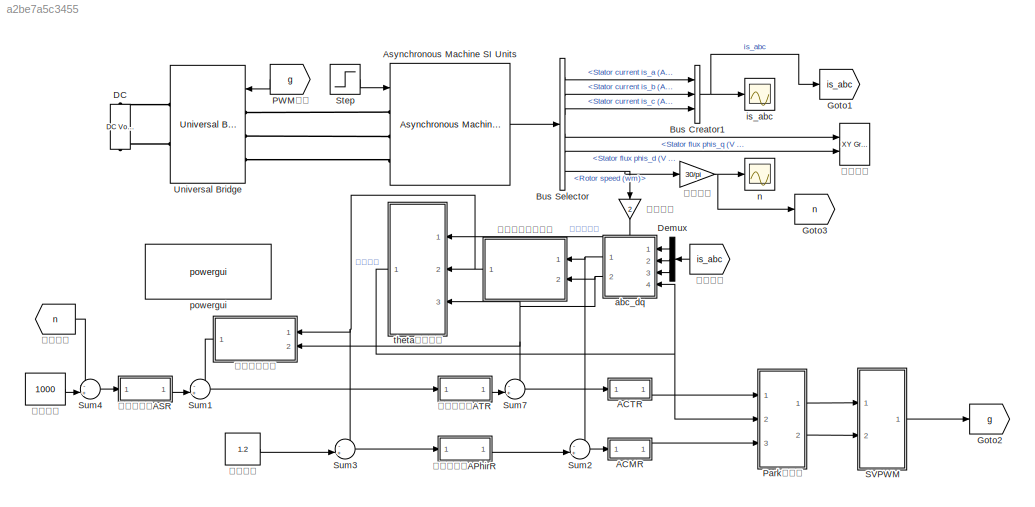
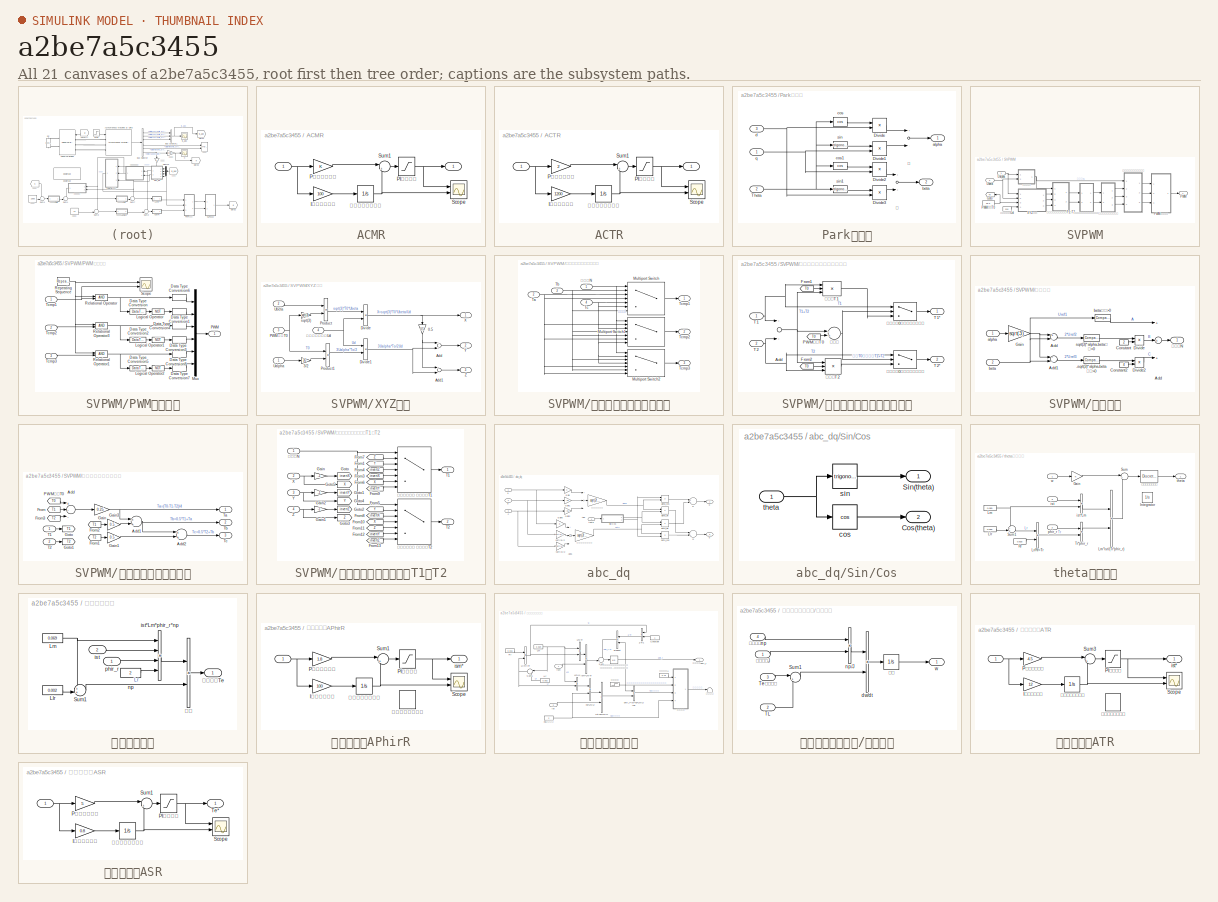
[diagram: thumbnail index - all 21 canvases of the model, root first then tree order]
MODEL slx_a2be7a5c3455
KIND model
CONFIG AbsTol = auto
CONFIG EnableMultiTasking = off
CONFIG FixedStep = auto
CONFIG MaxStep = 1e-4
CONFIG MinStep = auto
CONFIG RelTol = 1e-3
CONFIG SampleTimeConstraint = Unconstrained
CONFIG Solver = ode23tb
CONFIG SolverName = ode23tb
CONFIG StartTime = 0.0
CONFIG StopTime = 3
BLOCK [SubSystem] ACMR
  Ports = [1, 1]
  RequestExecContextInheritance = off
  Variant = off
BLOCK [Outport] ACMR/ 
  IconDisplay = Port number
BLOCK [Inport] ACMR/  
  IconDisplay = Port number
BLOCK [Gain] ACMR/I积分放大倍数
  Gain = 100
  OutDataTypeStr = Inherit: Inherit via internal rule
  ParamDataTypeStr = Inherit: Inherit via internal rule
  SaturateOnIntegerOverflow = off
BLOCK [Saturate] ACMR/PI输出限幅
  InputPortMap = u0
  LowerLimit = -75
  Ports = [1, 1]
  UpperLimit = 75
BLOCK [Gain] ACMR/P比例放大倍数
  OutDataTypeStr = Inherit: Inherit via internal rule
  ParamDataTypeStr = Inherit: Inherit via internal rule
  SaturateOnIntegerOverflow = off
BLOCK [Scope] ACMR/Scope
  NumInputPorts = 2
  Ports = [2]
  ScopeSpecificationString = Simulink.scopes.TimeScopeBlockCfg('CurrentConfiguration', extmgr.ConfigurationSet(extmgr.Configuration('Core','General UI',true),extmgr.Configuration('Core','Source UI',true),extmgr.Configuration('Sources','WiredSimulink',true,'DataLoggingVariableName','ScopeData1'),extmgr.Configuration('Visuals','Time Domain',true,'SerializedDisplays',{struct('MinYLimReal','-85.66897','MaxYLimReal','21.02076','YL...<+1411ch>
BLOCK [Sum] ACMR/Sum1
  IconShape = round
  InputSameDT = off
  Inputs = |++
  OutDataTypeStr = Inherit: Inherit via internal rule
  Ports = [2, 1]
  SaturateOnIntegerOverflow = off
BLOCK [Integrator] ACMR/带限幅的连续积分
  LimitOutput = on
  LowerSaturationLimit = -390
  Ports = [1, 1]
  UpperSaturationLimit = 390
BLOCK [SubSystem] ACTR
  Ports = [1, 1]
  RequestExecContextInheritance = off
  Variant = off
BLOCK [Outport] ACTR/ 
  IconDisplay = Port number
BLOCK [Inport] ACTR/  
  IconDisplay = Port number
BLOCK [Gain] ACTR/I积分放大倍数
  Gain = 1200
  OutDataTypeStr = Inherit: Inherit via internal rule
  ParamDataTypeStr = Inherit: Inherit via internal rule
  SaturateOnIntegerOverflow = off
BLOCK [Saturate] ACTR/PI输出限幅
  InputPortMap = u0
  LowerLimit = -380
  Ports = [1, 1]
  UpperLimit = 380
BLOCK [Gain] ACTR/P比例放大倍数
  Gain = 2
  OutDataTypeStr = Inherit: Inherit via internal rule
  ParamDataTypeStr = Inherit: Inherit via internal rule
  SaturateOnIntegerOverflow = off
BLOCK [Scope] ACTR/Scope
  NumInputPorts = 2
  Ports = [2]
  ScopeSpecificationString = Simulink.scopes.TimeScopeBlockCfg('CurrentConfiguration', extmgr.ConfigurationSet(extmgr.Configuration('Core','General UI',true),extmgr.Configuration('Core','Source UI',true),extmgr.Configuration('Sources','WiredSimulink',true,'DataLoggingVariableName','ScopeData1'),extmgr.Configuration('Visuals','Time Domain',true,'SerializedDisplays',{struct('MinYLimReal','-39.15296','MaxYLimReal','352.37665','Y...<+1458ch>
BLOCK [Sum] ACTR/Sum1
  IconShape = round
  InputSameDT = off
  Inputs = |++
  OutDataTypeStr = Inherit: Inherit via internal rule
  Ports = [2, 1]
  SaturateOnIntegerOverflow = off
BLOCK [Integrator] ACTR/带限幅的连续积分
  LimitOutput = on
  LowerSaturationLimit = -400
  Ports = [1, 1]
  UpperSaturationLimit = 400
BLOCK [Reference] Asynchronous Machine SI Units  REF=powerlib/Machines/Asynchronous Machine
SI Units
  Ports = [1, 1, 0, 0, 0, 3]
  SourceBlock = powerlib/Machines/Asynchronous Machine\nSI Units
  SourceProductBaseCode = PS
  SourceProductName = Simscape Power Systems
  SourceType = Asynchronous Machine
BLOCK [BusCreator] Bus Creator1
  DisplayOption = bar
  InheritFromInputs = on
  Inputs = 3
  Ports = [3, 1]
BLOCK [BusSelector] Bus Selector
  OutputAsBus = off
  OutputSignals = Stator measurements.Stator current is_a (A),Stator measurements.Stator current is_b (A),Stator measurements.Stator current is_c (A),Stator measurements.Stator flux phis_q (V s),Stator measurements.Stator flux phis_d (V s),Mechanical.Rotor speed (wm)
  Ports = [1, 6]
BLOCK [Reference] DC  REF=powerlib/Electrical
Sources/DC Voltage Source
  Ports = [0, 0, 0, 0, 0, 1, 1]
  SourceBlock = powerlib/Electrical\nSources/DC Voltage Source
  SourceProductBaseCode = PS
  SourceProductName = Simscape Power Systems
  SourceType = DC Voltage Source
BLOCK [Demux] Demux
  DisplayOption = bar
  Outputs = 3
  Ports = [1, 3]
BLOCK [Goto] Goto1
  GotoTag = is_abc
BLOCK [Goto] Goto2
  GotoTag = g
BLOCK [Goto] Goto3
  GotoTag = n
BLOCK [From] PWM信号
  GotoTag = g
BLOCK [SubSystem] Park逆变换
  Ports = [3, 2]
  RequestExecContextInheritance = off
  Variant = off
BLOCK [Product] Park逆变换/Divide
  InputSameDT = off
  Inputs = **
  OutDataTypeStr = Inherit: Inherit via internal rule
  Ports = [2, 1]
  RndMeth = Floor
  SaturateOnIntegerOverflow = off
BLOCK [Product] Park逆变换/Divide1
  InputSameDT = off
  Inputs = **
  OutDataTypeStr = Inherit: Inherit via internal rule
  Ports = [2, 1]
  RndMeth = Floor
  SaturateOnIntegerOverflow = off
BLOCK [Product] Park逆变换/Divide2
  InputSameDT = off
  Inputs = **
  OutDataTypeStr = Inherit: Inherit via internal rule
  Ports = [2, 1]
  RndMeth = Floor
  SaturateOnIntegerOverflow = off
BLOCK [Product] Park逆变换/Divide3
  InputSameDT = off
  Inputs = **
  OutDataTypeStr = Inherit: Inherit via internal rule
  Ports = [2, 1]
  RndMeth = Floor
  SaturateOnIntegerOverflow = off
BLOCK [Inport] Park逆变换/Theta
  IconDisplay = Port number
  Port = 2
BLOCK [Outport] Park逆变换/alpha
  IconDisplay = Port number
BLOCK [Outport] Park逆变换/beta
  IconDisplay = Port number
  Port = 2
BLOCK [Trigonometry] Park逆变换/cos
  Operator = cos
  Ports = [1, 1]
BLOCK [Trigonometry] Park逆变换/cos1
  Operator = cos
  Ports = [1, 1]
BLOCK [Inport] Park逆变换/d
  IconDisplay = Port number
  Port = 3
BLOCK [Inport] Park逆变换/q
  IconDisplay = Port number
BLOCK [Trigonometry] Park逆变换/sin
  Ports = [1, 1]
BLOCK [Trigonometry] Park逆变换/sin1
  Ports = [1, 1]
BLOCK [Sum] Park逆变换/减
  InputSameDT = off
  Inputs = +-
  OutDataTypeStr = Inherit: Inherit via internal rule
  Ports = [2, 1]
  SaturateOnIntegerOverflow = off
BLOCK [Sum] Park逆变换/加
  InputSameDT = off
  OutDataTypeStr = Inherit: Inherit via internal rule
  Ports = [2, 1]
  SaturateOnIntegerOverflow = off
BLOCK [SubSystem] SVPWM
  Ports = [2, 1]
  RequestExecContextInheritance = off
  Variant = off
BLOCK [Goto] SVPWM/Goto
  GotoTag = T0
  TagVisibility = global
BLOCK [Outport] SVPWM/PWM
  IconDisplay = Port number
BLOCK [SubSystem] SVPWM/PWM信号产生
  Ports = [3, 1]
  RequestExecContextInheritance = off
  Variant = off
BLOCK [DataTypeConversion] SVPWM/PWM信号产生/Data Type Conversion
  OutDataTypeStr = boolean
  RndMeth = Floor
  SaturateOnIntegerOverflow = off
BLOCK [DataTypeConversion] SVPWM/PWM信号产生/Data Type Conversion1
  OutDataTypeStr = double
  RndMeth = Floor
  SaturateOnIntegerOverflow = off
BLOCK [DataTypeConversion] SVPWM/PWM信号产生/Data Type Conversion2
  OutDataTypeStr = boolean
  RndMeth = Floor
  SaturateOnIntegerOverflow = off
BLOCK [DataTypeConversion] SVPWM/PWM信号产生/Data Type Conversion3
  OutDataTypeStr = double
  RndMeth = Floor
  SaturateOnIntegerOverflow = off
BLOCK [DataTypeConversion] SVPWM/PWM信号产生/Data Type Conversion4
  OutDataTypeStr = double
  RndMeth = Floor
  SaturateOnIntegerOverflow = off
BLOCK [DataTypeConversion] SVPWM/PWM信号产生/Data Type Conversion5
  OutDataTypeStr = boolean
  RndMeth = Floor
  SaturateOnIntegerOverflow = off
BLOCK [DataTypeConversion] SVPWM/PWM信号产生/Data Type Conversion6
  OutDataTypeStr = double
  RndMeth = Floor
  SaturateOnIntegerOverflow = off
BLOCK [DataTypeConversion] SVPWM/PWM信号产生/Data Type Conversion7
  OutDataTypeStr = double
  RndMeth = Floor
  SaturateOnIntegerOverflow = off
BLOCK [DataTypeConversion] SVPWM/PWM信号产生/Data Type Conversion8
  OutDataTypeStr = double
  RndMeth = Floor
  SaturateOnIntegerOverflow = off
BLOCK [Logic] SVPWM/PWM信号产生/Logical Operator
  AllPortsSameDT = off
  Operator = NOT
  OutDataTypeStr = boolean
  Ports = [1, 1]
BLOCK [Logic] SVPWM/PWM信号产生/Logical Operator1
  AllPortsSameDT = off
  Operator = NOT
  OutDataTypeStr = boolean
  Ports = [1, 1]
BLOCK [Logic] SVPWM/PWM信号产生/Logical Operator2
  AllPortsSameDT = off
  Operator = NOT
  OutDataTypeStr = boolean
  Ports = [1, 1]
BLOCK [Mux] SVPWM/PWM信号产生/Mux
  DisplayOption = bar
  Inputs = 6
  Ports = [6, 1]
BLOCK [Outport] SVPWM/PWM信号产生/PWM
  IconDisplay = Port number
BLOCK [RelationalOperator] SVPWM/PWM信号产生/Relational Operator
  InputSameDT = off
  OutDataTypeStr = boolean
  Ports = [2, 1]
BLOCK [RelationalOperator] SVPWM/PWM信号产生/Relational Operator1
  InputSameDT = off
  OutDataTypeStr = boolean
  Ports = [2, 1]
BLOCK [RelationalOperator] SVPWM/PWM信号产生/Relational Operator3
  InputSameDT = off
  OutDataTypeStr = boolean
  Ports = [2, 1]
BLOCK [Reference] SVPWM/PWM信号产生/Repeating Sequence  REF=simulink/Sources/Repeating
Sequence
  Ports = [0, 1]
  SourceBlock = simulink/Sources/Repeating\nSequence
  SourceProductBaseCode = SL
  SourceProductName = Simulink
  SourceType = Repeating table
BLOCK [Scope] SVPWM/PWM信号产生/Scope
  NumInputPorts = 2
  Ports = [2]
  ScopeSpecificationString = Simulink.scopes.TimeScopeBlockCfg('CurrentConfiguration', extmgr.ConfigurationSet(extmgr.Configuration('Core','General UI',true),extmgr.Configuration('Core','Source UI',true),extmgr.Configuration('Sources','WiredSimulink',true,'DataLoggingVariableName','ScopeData1'),extmgr.Configuration('Visuals','Time Domain',true,'SerializedDisplays',{struct('MinYLimReal','-10','MaxYLimReal','10','YLabelReal',''...<+1317ch>
BLOCK [Inport] SVPWM/PWM信号产生/Tcmp1
  IconDisplay = Port number
BLOCK [Inport] SVPWM/PWM信号产生/Tcmp2
  IconDisplay = Port number
  Port = 2
BLOCK [Inport] SVPWM/PWM信号产生/Tcmp3
  IconDisplay = Port number
  Port = 3
BLOCK [Constant] SVPWM/PWM周期T0
  Value = 2e-6
BLOCK [Inport] SVPWM/Ualpha
  IconDisplay = Port number
BLOCK [Inport] SVPWM/Ubeta
  IconDisplay = Port number
  Port = 2
BLOCK [SubSystem] SVPWM/XYZ计算
  Ports = [4, 3]
  RequestExecContextInheritance = off
  Variant = off
BLOCK [Gain] SVPWM/XYZ计算/0.5
  Gain = 0.5
  OutDataTypeStr = Inherit: Inherit via internal rule
  ParamDataTypeStr = Inherit: Inherit via internal rule
  SaturateOnIntegerOverflow = off
BLOCK [Gain] SVPWM/XYZ计算/3//2
  Gain = 3/2
  OutDataTypeStr = Inherit: Inherit via internal rule
  ParamDataTypeStr = Inherit: Inherit via internal rule
  SaturateOnIntegerOverflow = off
BLOCK [Sum] SVPWM/XYZ计算/Add
  InputSameDT = off
  OutDataTypeStr = Inherit: Inherit via internal rule
  Ports = [2, 1]
  SaturateOnIntegerOverflow = off
BLOCK [Sum] SVPWM/XYZ计算/Add1
  InputSameDT = off
  Inputs = +-
  OutDataTypeStr = Inherit: Inherit via internal rule
  Ports = [2, 1]
  SaturateOnIntegerOverflow = off
BLOCK [Product] SVPWM/XYZ计算/Divide
  InputSameDT = off
  Inputs = */
  OutDataTypeStr = Inherit: Inherit via internal rule
  Ports = [2, 1]
  RndMeth = Floor
  SaturateOnIntegerOverflow = off
BLOCK [Product] SVPWM/XYZ计算/Divide1
  InputSameDT = off
  Inputs = /*
  OutDataTypeStr = Inherit: Inherit via internal rule
  Ports = [2, 1]
  RndMeth = Floor
  SaturateOnIntegerOverflow = off
BLOCK [Inport] SVPWM/XYZ计算/PWM周期T0
  IconDisplay = Port number
  Port = 3
BLOCK [Product] SVPWM/XYZ计算/Product
  InputSameDT = off
  OutDataTypeStr = Inherit: Inherit via internal rule
  Ports = [2, 1]
  RndMeth = Floor
  SaturateOnIntegerOverflow = off
BLOCK [Product] SVPWM/XYZ计算/Product1
  InputSameDT = off
  OutDataTypeStr = Inherit: Inherit via internal rule
  Ports = [2, 1]
  RndMeth = Floor
  SaturateOnIntegerOverflow = off
BLOCK [Inport] SVPWM/XYZ计算/Ualpha
  IconDisplay = Port number
BLOCK [Inport] SVPWM/XYZ计算/Ubeta
  IconDisplay = Port number
  Port = 2
BLOCK [Outport] SVPWM/XYZ计算/X
  IconDisplay = Port number
BLOCK [Outport] SVPWM/XYZ计算/Y
  IconDisplay = Port number
  Port = 2
BLOCK [Outport] SVPWM/XYZ计算/Z
  IconDisplay = Port number
  Port = 3
BLOCK [Gain] SVPWM/XYZ计算/sqrt(3) 
  Gain = sqrt(3)
  OutDataTypeStr = Inherit: Inherit via internal rule
  ParamDataTypeStr = Inherit: Inherit via internal rule
  SaturateOnIntegerOverflow = off
BLOCK [Inport] SVPWM/XYZ计算/逆变直流侧电压Ud
  IconDisplay = Port number
  Port = 4
BLOCK [SubSystem] SVPWM/三相电压开关时间切换点
  Ports = [4, 3]
  RequestExecContextInheritance = off
  Variant = off
BLOCK [MultiPortSwitch] SVPWM/三相电压开关时间切换点/Multiport Switch
  InputSameDT = off
  Inputs = 6
  OutDataTypeStr = double
  Ports = [7, 1]
  SaturateOnIntegerOverflow = off
BLOCK [MultiPortSwitch] SVPWM/三相电压开关时间切换点/Multiport Switch1
  InputSameDT = off
  Inputs = 6
  OutDataTypeStr = double
  Ports = [7, 1]
  SaturateOnIntegerOverflow = off
BLOCK [MultiPortSwitch] SVPWM/三相电压开关时间切换点/Multiport Switch2
  InputSameDT = off
  Inputs = 6
  OutDataTypeStr = double
  Ports = [7, 1]
  SaturateOnIntegerOverflow = off
BLOCK [Inport] SVPWM/三相电压开关时间切换点/Ta
  IconDisplay = Port number
  Port = 2
BLOCK [Inport] SVPWM/三相电压开关时间切换点/Tb
  IconDisplay = Port number
  Port = 3
BLOCK [Inport] SVPWM/三相电压开关时间切换点/Tc
  IconDisplay = Port number
  Port = 4
BLOCK [Outport] SVPWM/三相电压开关时间切换点/Tcmp1
  IconDisplay = Port number
BLOCK [Outport] SVPWM/三相电压开关时间切换点/Tcmp2
  IconDisplay = Port number
  Port = 2
BLOCK [Outport] SVPWM/三相电压开关时间切换点/Tcmp3
  IconDisplay = Port number
  Port = 3
BLOCK [Inport] SVPWM/三相电压开关时间切换点/扇区值N
  IconDisplay = Port number
BLOCK [SubSystem] SVPWM/判定是否需要调制处理模块
  Ports = [2, 2]
  RequestExecContextInheritance = off
  Variant = off
BLOCK [Sum] SVPWM/判定是否需要调制处理模块/Add
  InputSameDT = off
  OutDataTypeStr = Inherit: Inherit via internal rule
  Ports = [2, 1]
  SaturateOnIntegerOverflow = off
BLOCK [From] SVPWM/判定是否需要调制处理模块/From1
  GotoTag = T0
  TagVisibility = global
BLOCK [From] SVPWM/判定是否需要调制处理模块/From2
  GotoTag = T0
  TagVisibility = global
BLOCK [From] SVPWM/判定是否需要调制处理模块/PWM周期T0
  GotoTag = T0
  TagVisibility = global
BLOCK [Inport] SVPWM/判定是否需要调制处理模块/T1
  IconDisplay = Port number
BLOCK [Outport] SVPWM/判定是否需要调制处理模块/T1*
  IconDisplay = Port number
BLOCK [Inport] SVPWM/判定是否需要调制处理模块/T2
  IconDisplay = Port number
  Port = 2
BLOCK [Outport] SVPWM/判定是否需要调制处理模块/T2*
  IconDisplay = Port number
  Port = 2
BLOCK [Switch] SVPWM/判定是否需要调制处理模块/如果大于0则切换开关到上方
  Criteria = u2 > Threshold
  InputSameDT = off
  SaturateOnIntegerOverflow = off
BLOCK [Switch] SVPWM/判定是否需要调制处理模块/如果大于0则切换开关到上方 
  Criteria = u2 > Threshold
  InputSameDT = off
  SaturateOnIntegerOverflow = off
BLOCK [Sum] SVPWM/判定是否需要调制处理模块/比较器
  InputSameDT = off
  Inputs = -+
  OutDataTypeStr = Inherit: Inherit via internal rule
  Ports = [2, 1]
  SaturateOnIntegerOverflow = off
BLOCK [Product] SVPWM/判定是否需要调制处理模块/调制后T1
  InputSameDT = off
  Inputs = **/
  OutDataTypeStr = Inherit: Inherit via internal rule
  Ports = [3, 1]
  RndMeth = Floor
  SaturateOnIntegerOverflow = off
BLOCK [Product] SVPWM/判定是否需要调制处理模块/调制后T2
  InputSameDT = off
  Inputs = /**
  OutDataTypeStr = Inherit: Inherit via internal rule
  Ports = [3, 1]
  RndMeth = Floor
  SaturateOnIntegerOverflow = off
BLOCK [SubSystem] SVPWM/扇区判断
  Ports = [2, 1]
  RequestExecContextInheritance = off
  Variant = off
BLOCK [Reference] SVPWM/扇区判断/-sqrt(3)*alpha-beta是否>0  REF=simulink/Logic and Bit
Operations/Compare
To Zero
  Ports = [1, 1]
  SourceBlock = simulink/Logic and Bit\nOperations/Compare\nTo Zero
  SourceProductBaseCode = SL
  SourceProductName = Simulink
  SourceType = Compare To Zero
BLOCK [Sum] SVPWM/扇区判断/Add
  InputSameDT = off
  Inputs = +-
  OutDataTypeStr = Inherit: Inherit via internal rule
  Ports = [2, 1]
  SaturateOnIntegerOverflow = off
BLOCK [Sum] SVPWM/扇区判断/Add 
  InputSameDT = off
  Inputs = +++
  OutDataTypeStr = Inherit: Inherit via internal rule
  Ports = [3, 1]
  SaturateOnIntegerOverflow = off
BLOCK [Sum] SVPWM/扇区判断/Add1
  InputSameDT = off
  Inputs = --
  OutDataTypeStr = Inherit: Inherit via internal rule
  Ports = [2, 1]
  SaturateOnIntegerOverflow = off
BLOCK [Constant] SVPWM/扇区判断/Constant
  Value = 2
BLOCK [Constant] SVPWM/扇区判断/Constant2
  Value = 4
BLOCK [Product] SVPWM/扇区判断/Divide
  InputSameDT = off
  Inputs = **
  OutDataTypeStr = Inherit: Inherit via internal rule
  Ports = [2, 1]
  RndMeth = Floor
  SaturateOnIntegerOverflow = off
BLOCK [Product] SVPWM/扇区判断/Divide2
  InputSameDT = off
  Inputs = **
  OutDataTypeStr = Inherit: Inherit via internal rule
  Ports = [2, 1]
  RndMeth = Floor
  SaturateOnIntegerOverflow = off
BLOCK [Gain] SVPWM/扇区判断/Gain
  Gain = sqrt(3)
  OutDataTypeStr = Inherit: Inherit via internal rule
  ParamDataTypeStr = Inherit: Inherit via internal rule
  SaturateOnIntegerOverflow = off
BLOCK [Inport] SVPWM/扇区判断/alpha
  IconDisplay = Port number
BLOCK [Inport] SVPWM/扇区判断/beta
  IconDisplay = Port number
  Port = 2
BLOCK [Reference] SVPWM/扇区判断/beta是否>0  REF=simulink/Logic and Bit
Operations/Compare
To Zero
  Ports = [1, 1]
  SourceBlock = simulink/Logic and Bit\nOperations/Compare\nTo Zero
  SourceProductBaseCode = SL
  SourceProductName = Simulink
  SourceType = Compare To Zero
BLOCK [Reference] SVPWM/扇区判断/sqrt(3)*alpha-beta是否>0  REF=simulink/Logic and Bit
Operations/Compare
To Zero
  Ports = [1, 1]
  SourceBlock = simulink/Logic and Bit\nOperations/Compare\nTo Zero
  SourceProductBaseCode = SL
  SourceProductName = Simulink
  SourceType = Compare To Zero
BLOCK [Outport] SVPWM/扇区判断/扇区值N
  IconDisplay = Port number
BLOCK [Constant] SVPWM/直流侧电压Ud
  Value = 510
BLOCK [SubSystem] SVPWM/确定各扇区矢量切换点
  Ports = [2, 3]
  RequestExecContextInheritance = off
  Variant = off
BLOCK [Sum] SVPWM/确定各扇区矢量切换点/Add
  InputSameDT = off
  Inputs = +--
  OutDataTypeStr = Inherit: Inherit via internal rule
  Ports = [3, 1]
  SaturateOnIntegerOverflow = off
BLOCK [Sum] SVPWM/确定各扇区矢量切换点/Add1
  InputSameDT = off
  OutDataTypeStr = Inherit: Inherit via internal rule
  Ports = [2, 1]
  SaturateOnIntegerOverflow = off
BLOCK [Sum] SVPWM/确定各扇区矢量切换点/Add2
  InputSameDT = off
  OutDataTypeStr = Inherit: Inherit via internal rule
  Ports = [2, 1]
  SaturateOnIntegerOverflow = off
BLOCK [From] SVPWM/确定各扇区矢量切换点/From
  GotoTag = T1
BLOCK [From] SVPWM/确定各扇区矢量切换点/From1
  GotoTag = T2
BLOCK [From] SVPWM/确定各扇区矢量切换点/From2
  GotoTag = T1
BLOCK [From] SVPWM/确定各扇区矢量切换点/From3
  GotoTag = T2
BLOCK [Gain] SVPWM/确定各扇区矢量切换点/Gain
  Gain = 0.25
  OutDataTypeStr = Inherit: Inherit via internal rule
  ParamDataTypeStr = Inherit: Inherit via internal rule
  SaturateOnIntegerOverflow = off
BLOCK [Gain] SVPWM/确定各扇区矢量切换点/Gain1
  Gain = 0.5
  OutDataTypeStr = Inherit: Inherit via internal rule
  ParamDataTypeStr = Inherit: Inherit via internal rule
  SaturateOnIntegerOverflow = off
BLOCK [Gain] SVPWM/确定各扇区矢量切换点/Gain3
  Gain = 0.5
  OutDataTypeStr = Inherit: Inherit via internal rule
  ParamDataTypeStr = Inherit: Inherit via internal rule
  SaturateOnIntegerOverflow = off
BLOCK [Goto] SVPWM/确定各扇区矢量切换点/Goto
  GotoTag = T1
BLOCK [Goto] SVPWM/确定各扇区矢量切换点/Goto1
  GotoTag = T2
BLOCK [From] SVPWM/确定各扇区矢量切换点/PWM周期T0
  GotoTag = T0
  TagVisibility = global
BLOCK [Inport] SVPWM/确定各扇区矢量切换点/T1
  IconDisplay = Port number
BLOCK [Inport] SVPWM/确定各扇区矢量切换点/T2
  IconDisplay = Port number
  Port = 2
BLOCK [Outport] SVPWM/确定各扇区矢量切换点/Ta
  IconDisplay = Port number
BLOCK [Outport] SVPWM/确定各扇区矢量切换点/Tb
  IconDisplay = Port number
  Port = 2
BLOCK [Outport] SVPWM/确定各扇区矢量切换点/Tc
  IconDisplay = Port number
  Port = 3
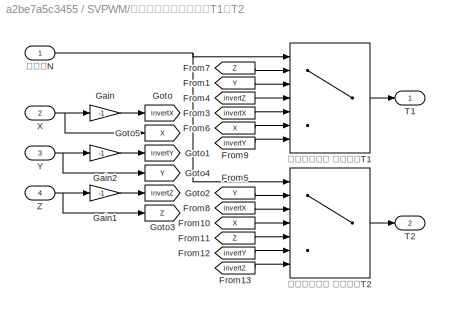
BLOCK [SubSystem] SVPWM/计算各个扇区作用时间T1、T2
  Ports = [4, 2]
  RequestExecContextInheritance = off
  Variant = off
BLOCK [From] SVPWM/计算各个扇区作用时间T1、T2/From1
  GotoTag = Y
  TagVisibility = global
BLOCK [From] SVPWM/计算各个扇区作用时间T1、T2/From10
  GotoTag = X
  TagVisibility = global
BLOCK [From] SVPWM/计算各个扇区作用时间T1、T2/From11
  GotoTag = Z
  TagVisibility = global
BLOCK [From] SVPWM/计算各个扇区作用时间T1、T2/From12
  GotoTag = invertY
  TagVisibility = global
BLOCK [From] SVPWM/计算各个扇区作用时间T1、T2/From13
  GotoTag = invertZ
  TagVisibility = global
BLOCK [From] SVPWM/计算各个扇区作用时间T1、T2/From3
  GotoTag = invertX
  TagVisibility = global
BLOCK [From] SVPWM/计算各个扇区作用时间T1、T2/From4
  GotoTag = invertZ
  TagVisibility = global
BLOCK [From] SVPWM/计算各个扇区作用时间T1、T2/From5
  GotoTag = Y
  TagVisibility = global
BLOCK [From] SVPWM/计算各个扇区作用时间T1、T2/From6
  GotoTag = X
  TagVisibility = global
BLOCK [From] SVPWM/计算各个扇区作用时间T1、T2/From7
  GotoTag = Z
  TagVisibility = global
BLOCK [From] SVPWM/计算各个扇区作用时间T1、T2/From8
  GotoTag = invertX
  TagVisibility = global
BLOCK [From] SVPWM/计算各个扇区作用时间T1、T2/From9
  GotoTag = invertY
  TagVisibility = global
BLOCK [Gain] SVPWM/计算各个扇区作用时间T1、T2/Gain
  Gain = -1
  OutDataTypeStr = Inherit: Inherit via internal rule
  ParamDataTypeStr = Inherit: Inherit via internal rule
  SaturateOnIntegerOverflow = off
BLOCK [Gain] SVPWM/计算各个扇区作用时间T1、T2/Gain1
  Gain = -1
  OutDataTypeStr = Inherit: Inherit via internal rule
  ParamDataTypeStr = Inherit: Inherit via internal rule
  SaturateOnIntegerOverflow = off
BLOCK [Gain] SVPWM/计算各个扇区作用时间T1、T2/Gain2
  Gain = -1
  OutDataTypeStr = Inherit: Inherit via internal rule
  ParamDataTypeStr = Inherit: Inherit via internal rule
  SaturateOnIntegerOverflow = off
BLOCK [Goto] SVPWM/计算各个扇区作用时间T1、T2/Goto
  GotoTag = invertX
  TagVisibility = global
BLOCK [Goto] SVPWM/计算各个扇区作用时间T1、T2/Goto1
  GotoTag = invertY
  TagVisibility = global
BLOCK [Goto] SVPWM/计算各个扇区作用时间T1、T2/Goto2
  GotoTag = invertZ
  TagVisibility = global
BLOCK [Goto] SVPWM/计算各个扇区作用时间T1、T2/Goto3
  GotoTag = Z
  TagVisibility = global
BLOCK [Goto] SVPWM/计算各个扇区作用时间T1、T2/Goto4
  GotoTag = Y
  TagVisibility = global
BLOCK [Goto] SVPWM/计算各个扇区作用时间T1、T2/Goto5
  GotoTag = X
  TagVisibility = global
BLOCK [Outport] SVPWM/计算各个扇区作用时间T1、T2/T1
  IconDisplay = Port number
BLOCK [Outport] SVPWM/计算各个扇区作用时间T1、T2/T2
  IconDisplay = Port number
  Port = 2
BLOCK [Inport] SVPWM/计算各个扇区作用时间T1、T2/X
  IconDisplay = Port number
  Port = 2
BLOCK [Inport] SVPWM/计算各个扇区作用时间T1、T2/Y
  IconDisplay = Port number
  Port = 3
BLOCK [Inport] SVPWM/计算各个扇区作用时间T1、T2/Z
  IconDisplay = Port number
  Port = 4
BLOCK [Inport] SVPWM/计算各个扇区作用时间T1、T2/扇区值N
  IconDisplay = Port number
BLOCK [MultiPortSwitch] SVPWM/计算各个扇区作用时间T1、T2/根据输入扇区 选择输出T1
  InputSameDT = off
  Inputs = 6
  Ports = [7, 1]
  SaturateOnIntegerOverflow = off
BLOCK [MultiPortSwitch] SVPWM/计算各个扇区作用时间T1、T2/根据输入扇区 选择输出T2
  InputSameDT = off
  Inputs = 6
  Ports = [7, 1]
  SaturateOnIntegerOverflow = off
BLOCK [Step] Step
  After = 55
  SampleTime = 0
  Time = 0.6
BLOCK [Sum] Sum1
  IconShape = round
  InputSameDT = off
  Inputs = -+|
  OutDataTypeStr = Inherit: Inherit via internal rule
  Ports = [2, 1]
  SaturateOnIntegerOverflow = off
BLOCK [Sum] Sum2
  IconShape = round
  InputSameDT = off
  Inputs = -+|
  OutDataTypeStr = Inherit: Inherit via internal rule
  Ports = [2, 1]
  SaturateOnIntegerOverflow = off
BLOCK [Sum] Sum3
  IconShape = round
  InputSameDT = off
  Inputs = -+|
  OutDataTypeStr = Inherit: Inherit via internal rule
  Ports = [2, 1]
  SaturateOnIntegerOverflow = off
BLOCK [Sum] Sum4
  IconShape = round
  InputSameDT = off
  Inputs = -+|
  OutDataTypeStr = Inherit: Inherit via internal rule
  Ports = [2, 1]
  SaturateOnIntegerOverflow = off
BLOCK [Sum] Sum7
  IconShape = round
  InputSameDT = off
  Inputs = -+|
  OutDataTypeStr = Inherit: Inherit via internal rule
  Ports = [2, 1]
  SaturateOnIntegerOverflow = off
BLOCK [Reference] Universal Bridge  REF=powerlib/Power
Electronics/Universal Bridge
  Ports = [1, 0, 0, 0, 0, 3, 2]
  SourceBlock = powerlib/Power\nElectronics/Universal Bridge
  SourceProductBaseCode = PS
  SourceProductName = Simscape Power Systems
  SourceType = Universal Bridge
BLOCK [SubSystem] abc_dq
  Ports = [4, 2]
  RequestExecContextInheritance = off
  Variant = off
BLOCK [Gain] abc_dq/-sqrt(3)//2
  Gain = -sqrt(3)/2
  OutDataTypeStr = Inherit: Inherit via internal rule
  ParamDataTypeStr = Inherit: Inherit via internal rule
  SaturateOnIntegerOverflow = off
BLOCK [Sum] abc_dq/Add
  InputSameDT = off
  Inputs = 3
  OutDataTypeStr = Inherit: Inherit via internal rule
  Ports = [3, 1]
  SaturateOnIntegerOverflow = off
BLOCK [Sum] abc_dq/Add1
  InputSameDT = off
  Inputs = 3
  OutDataTypeStr = Inherit: Inherit via internal rule
  Ports = [3, 1]
  SaturateOnIntegerOverflow = off
BLOCK [Sum] abc_dq/D
  InputSameDT = off
  OutDataTypeStr = Inherit: Inherit via internal rule
  Ports = [2, 1]
  SaturateOnIntegerOverflow = off
BLOCK [Gain] abc_dq/Gain
  OutDataTypeStr = Inherit: Inherit via internal rule
  ParamDataTypeStr = Inherit: Inherit via internal rule
  SaturateOnIntegerOverflow = off
BLOCK [Gain] abc_dq/Gain1
  Gain = -0.5
  OutDataTypeStr = Inherit: Inherit via internal rule
  ParamDataTypeStr = Inherit: Inherit via internal rule
  SaturateOnIntegerOverflow = off
BLOCK [Gain] abc_dq/Gain2
  Gain = -0.5
  OutDataTypeStr = Inherit: Inherit via internal rule
  ParamDataTypeStr = Inherit: Inherit via internal rule
  SaturateOnIntegerOverflow = off
BLOCK [Gain] abc_dq/Gain5
  Gain = 0
  OutDataTypeStr = Inherit: Inherit via internal rule
  ParamDataTypeStr = Inherit: Inherit via internal rule
  SaturateOnIntegerOverflow = off
BLOCK [Sum] abc_dq/Q
  InputSameDT = off
  Inputs = -+
  OutDataTypeStr = Inherit: Inherit via internal rule
  Ports = [2, 1]
  SaturateOnIntegerOverflow = off
BLOCK [SubSystem] abc_dq/Sin//Cos
  Ports = [1, 2]
  RequestExecContextInheritance = off
  Variant = off
BLOCK [Outport] abc_dq/Sin//Cos/Cos(theta)
  IconDisplay = Port number
  Port = 2
BLOCK [Outport] abc_dq/Sin//Cos/Sin(theta)
  IconDisplay = Port number
BLOCK [Trigonometry] abc_dq/Sin//Cos/cos
  Operator = cos
  Ports = [1, 1]
BLOCK [Trigonometry] abc_dq/Sin//Cos/sin
  Ports = [1, 1]
BLOCK [Inport] abc_dq/Sin//Cos/theta
  IconDisplay = Port number
BLOCK [Inport] abc_dq/a
  IconDisplay = Port number
BLOCK [Product] abc_dq/alpha_cos
  InputSameDT = off
  OutDataTypeStr = Inherit: Inherit via internal rule
  Ports = [2, 1]
  RndMeth = Floor
  SaturateOnIntegerOverflow = off
BLOCK [Product] abc_dq/alpha_sin
  InputSameDT = off
  OutDataTypeStr = Inherit: Inherit via internal rule
  Ports = [2, 1]
  RndMeth = Floor
  SaturateOnIntegerOverflow = off
BLOCK [Inport] abc_dq/b
  IconDisplay = Port number
  Port = 2
BLOCK [Product] abc_dq/beta_cos
  InputSameDT = off
  OutDataTypeStr = Inherit: Inherit via internal rule
  Ports = [2, 1]
  RndMeth = Floor
  SaturateOnIntegerOverflow = off
BLOCK [Product] abc_dq/beta_sin
  InputSameDT = off
  OutDataTypeStr = Inherit: Inherit via internal rule
  Ports = [2, 1]
  RndMeth = Floor
  SaturateOnIntegerOverflow = off
BLOCK [Inport] abc_dq/c
  IconDisplay = Port number
  Port = 3
BLOCK [Outport] abc_dq/d
  IconDisplay = Port number
BLOCK [Outport] abc_dq/q
  IconDisplay = Port number
  Port = 2
BLOCK [Gain] abc_dq/sqrt(3)//2
  Gain = sqrt(3)/2
  OutDataTypeStr = Inherit: Inherit via internal rule
  ParamDataTypeStr = Inherit: Inherit via internal rule
  SaturateOnIntegerOverflow = off
BLOCK [Inport] abc_dq/theta
  IconDisplay = Port number
  Port = 4
BLOCK [Gain] abc_dq/功率不变保持系数
  Gain = sqrt(2/3)
  OutDataTypeStr = Inherit: Inherit via internal rule
  ParamDataTypeStr = Inherit: Inherit via internal rule
  SaturateOnIntegerOverflow = off
BLOCK [Gain] abc_dq/功率保持系数
  Gain = sqrt(2/3)
  OutDataTypeStr = Inherit: Inherit via internal rule
  ParamDataTypeStr = Inherit: Inherit via internal rule
  SaturateOnIntegerOverflow = off
BLOCK [Scope] is_abc
  NumInputPorts = 1
  Ports = [1]
  ScopeSpecificationString = Simulink.scopes.TimeScopeBlockCfg('CurrentConfiguration', extmgr.ConfigurationSet(extmgr.Configuration('Core','General UI',true),extmgr.Configuration('Core','Source UI',true),extmgr.Configuration('Sources','WiredSimulink',true,'DataLoggingVariableName','ScopeData3'),extmgr.Configuration('Visuals','Time Domain',true,'SerializedDisplays',{struct('MinYLimReal','-84.17257','MaxYLimReal','78.13846','YL...<+1630ch>
BLOCK [Scope] n
  NumInputPorts = 1
  Ports = [1]
  ScopeSpecificationString = Simulink.scopes.TimeScopeBlockCfg('CurrentConfiguration', extmgr.ConfigurationSet(extmgr.Configuration('Core','General UI',true,'FigureColor',[1 1 1]),extmgr.Configuration('Core','Source UI',true),extmgr.Configuration('Sources','WiredSimulink',true,'DataLoggingVariableName','ScopeData4'),extmgr.Configuration('Visuals','Time Domain',true,'SerializedDisplays',{struct('MinYLimReal','-125.70962','MaxY...<+1905ch>
BLOCK [Reference] powergui  REF=powerlib/powergui
  Ports = []
  SourceBlock = powerlib/powergui
  SourceProductBaseCode = PS
  SourceProductName = Simscape Power Systems
  SourceType = PSB option menu block
BLOCK [SubSystem] theta计算模型
  Ports = [3, 1]
  RequestExecContextInheritance = off
  Variant = off
BLOCK [Gain] theta计算模型/Gain
  OutDataTypeStr = Inherit: Inherit via internal rule
  ParamDataTypeStr = Inherit: Inherit via internal rule
  SaturateOnIntegerOverflow = off
BLOCK [Integrator] theta计算模型/Integrator
  Ports = [1, 1]
BLOCK [Constant] theta计算模型/Llr
  Value = 0.002
BLOCK [Constant] theta计算模型/Lm
  Value = 0.069
BLOCK [Product] theta计算模型/Lm*ist//(Tr*phir_r)
  InputSameDT = off
  Inputs = */
  OutDataTypeStr = Inherit: Inherit via internal rule
  Ports = [2, 1]
  RndMeth = Floor
  SaturateOnIntegerOverflow = off
BLOCK [Product] theta计算模型/Lr//Rr=Tr
  InputSameDT = off
  Inputs = */
  OutDataTypeStr = Inherit: Inherit via internal rule
  Ports = [2, 1]
  RndMeth = Floor
  SaturateOnIntegerOverflow = off
BLOCK [Constant] theta计算模型/Rr
  Value = 0.816
BLOCK [Sum] theta计算模型/Sum
  IconShape = round
  InputSameDT = off
  Inputs = |++
  OutDataTypeStr = Inherit: Inherit via internal rule
  Ports = [2, 1]
  SaturateOnIntegerOverflow = off
BLOCK [Sum] theta计算模型/Sum1
  IconShape = round
  InputSameDT = off
  Inputs = ++|
  OutDataTypeStr = Inherit: Inherit via internal rule
  Ports = [2, 1]
  SaturateOnIntegerOverflow = off
BLOCK [Product] theta计算模型/Tr*phir_r
  InputSameDT = off
  OutDataTypeStr = Inherit: Inherit via internal rule
  Ports = [2, 1]
  RndMeth = Floor
  SaturateOnIntegerOverflow = off
BLOCK [Inport] theta计算模型/ist
  IconDisplay = Port number
  Port = 3
BLOCK [Product] theta计算模型/ist*Lm
  InputSameDT = off
  OutDataTypeStr = Inherit: Inherit via internal rule
  Ports = [2, 1]
  RndMeth = Floor
  SaturateOnIntegerOverflow = off
BLOCK [Inport] theta计算模型/phir_r
  IconDisplay = Port number
  Port = 2
BLOCK [Outport] theta计算模型/theta
  IconDisplay = Port number
BLOCK [Inport] theta计算模型/w
  IconDisplay = Port number
BLOCK [DiscreteIntegrator] theta计算模型/带限幅的离散积分
  ICPrevOutput = DiscIntNeverNeededParam
  ICPrevScaledInput = DiscIntNeverNeededParam
  IntegratorMethod = Integration: Trapezoidal
  LimitOutput = on
  LowerSaturationLimit = -3000
  Ports = [1, 1]
  SampleTime = 2e-5
  UpperSaturationLimit = 3000
BLOCK [From] 定子电流
  GotoTag = is_abc
BLOCK [From] 实际转速
  GotoTag = n
BLOCK [SubSystem] 电磁转矩计算
  Ports = [2, 1]
  RequestExecContextInheritance = off
  Variant = off
BLOCK [Constant] 电磁转矩计算/Llr
  Value = 0.002
BLOCK [Constant] 电磁转矩计算/Lm
  Value = 0.069
BLOCK [Sum] 电磁转矩计算/Sum1
  IconShape = round
  InputSameDT = off
  Inputs = ++|
  OutDataTypeStr = Inherit: Inherit via internal rule
  Ports = [2, 1]
  SaturateOnIntegerOverflow = off
BLOCK [Inport] 电磁转矩计算/ist
  IconDisplay = Port number
  Port = 2
BLOCK [Product] 电磁转矩计算/ist*Lm*phir_r*np
  InputSameDT = off
  Inputs = 4
  OutDataTypeStr = Inherit: Inherit via internal rule
  Ports = [4, 1]
  RndMeth = Floor
  SaturateOnIntegerOverflow = off
BLOCK [Constant] 电磁转矩计算/np
  Value = 2
BLOCK [Inport] 电磁转矩计算/phir_r
  IconDisplay = Port number
BLOCK [Outport] 电磁转矩计算/电磁转矩Te
  IconDisplay = Port number
BLOCK [Product] 电磁转矩计算/除法
  InputSameDT = off
  Inputs = */
  OutDataTypeStr = Inherit: Inherit via internal rule
  Ports = [2, 1]
  RndMeth = Floor
  SaturateOnIntegerOverflow = off
BLOCK [Reference] 磁链观测  REF=simulink/Sinks/XY Graph
  Ports = [2]
  SourceBlock = simulink/Sinks/XY Graph
  SourceProductBaseCode = SL
  SourceProductName = Simulink
  SourceType = XY scope.
BLOCK [SubSystem] 磁链调节器APhirR
  Ports = [1, 1]
  RequestExecContextInheritance = off
  Variant = off
BLOCK [Inport] 磁链调节器APhirR/ 
  IconDisplay = Port number
BLOCK [Gain] 磁链调节器APhirR/I积分放大倍数
  Gain = 100
  OutDataTypeStr = Inherit: Inherit via internal rule
  ParamDataTypeStr = Inherit: Inherit via internal rule
  SaturateOnIntegerOverflow = off
BLOCK [Saturate] 磁链调节器APhirR/PI输出限幅
  InputPortMap = u0
  LowerLimit = -13
  Ports = [1, 1]
  UpperLimit = 13
BLOCK [Gain] 磁链调节器APhirR/P比例放大倍数
  Gain = 1.8
  OutDataTypeStr = Inherit: Inherit via internal rule
  ParamDataTypeStr = Inherit: Inherit via internal rule
  SaturateOnIntegerOverflow = off
BLOCK [Scope] 磁链调节器APhirR/Scope
  NumInputPorts = 2
  Ports = [2]
  ScopeSpecificationString = Simulink.scopes.TimeScopeBlockCfg('CurrentConfiguration', extmgr.ConfigurationSet(extmgr.Configuration('Core','General UI',true),extmgr.Configuration('Core','Source UI',true),extmgr.Configuration('Sources','WiredSimulink',true,'DataLoggingVariableName','ScopeData3'),extmgr.Configuration('Visuals','Time Domain',true,'SerializedDisplays',{struct('MinYLimReal','-1.59058','MaxYLimReal','14.31519','YLa...<+1380ch>
BLOCK [Sum] 磁链调节器APhirR/Sum1
  IconShape = round
  InputSameDT = off
  Inputs = |++
  OutDataTypeStr = Inherit: Inherit via internal rule
  Ports = [2, 1]
  SaturateOnIntegerOverflow = off
BLOCK [Outport] 磁链调节器APhirR/ism*
  IconDisplay = Port number
BLOCK [DiscreteIntegrator] 磁链调节器APhirR/带限幅的离散积分
  ICPrevOutput = DiscIntNeverNeededParam
  ICPrevScaledInput = DiscIntNeverNeededParam
  Ports = [1, 1]
  SampleTime = 2e-5
BLOCK [Integrator] 磁链调节器APhirR/带限幅的连续积分
  LimitOutput = on
  LowerSaturationLimit = -15
  Ports = [1, 1]
  UpperSaturationLimit = 15
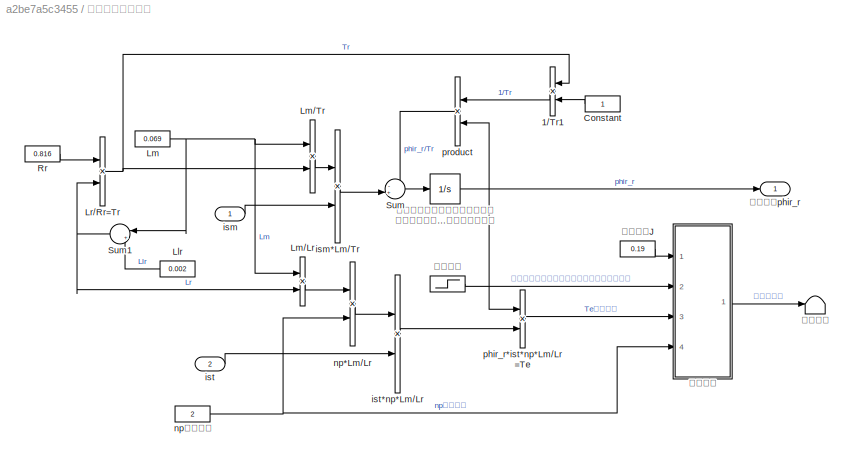
BLOCK [SubSystem] 等效直流电机模型
  Ports = [2, 1]
  RequestExecContextInheritance = off
  Variant = off
BLOCK [Product] 等效直流电机模型/1//Tr1
  InputSameDT = off
  Inputs = /*
  OutDataTypeStr = Inherit: Inherit via internal rule
  Ports = [2, 1]
  RndMeth = Floor
  SaturateOnIntegerOverflow = off
BLOCK [Constant] 等效直流电机模型/Constant
BLOCK [Constant] 等效直流电机模型/Llr
  Value = 0.002
BLOCK [Constant] 等效直流电机模型/Lm
  Value = 0.069
BLOCK [Product] 等效直流电机模型/Lm//Lr
  InputSameDT = off
  Inputs = */
  OutDataTypeStr = Inherit: Inherit via internal rule
  Ports = [2, 1]
  RndMeth = Floor
  SaturateOnIntegerOverflow = off
BLOCK [Product] 等效直流电机模型/Lm//Tr
  InputSameDT = off
  Inputs = */
  OutDataTypeStr = Inherit: Inherit via internal rule
  Ports = [2, 1]
  RndMeth = Floor
  SaturateOnIntegerOverflow = off
BLOCK [Product] 等效直流电机模型/Lr//Rr=Tr
  InputSameDT = off
  Inputs = /*
  OutDataTypeStr = Inherit: Inherit via internal rule
  Ports = [2, 1]
  RndMeth = Floor
  SaturateOnIntegerOverflow = off
BLOCK [Constant] 等效直流电机模型/Rr
  Value = 0.816
BLOCK [Sum] 等效直流电机模型/Sum
  IconShape = round
  InputSameDT = off
  Inputs = -+|
  OutDataTypeStr = Inherit: Inherit via internal rule
  Ports = [2, 1]
  SaturateOnIntegerOverflow = off
BLOCK [Sum] 等效直流电机模型/Sum1
  IconShape = round
  InputSameDT = off
  Inputs = |++
  OutDataTypeStr = Inherit: Inherit via internal rule
  Ports = [2, 1]
  SaturateOnIntegerOverflow = off
BLOCK [Inport] 等效直流电机模型/ism
  IconDisplay = Port number
BLOCK [Product] 等效直流电机模型/ism*Lm//Tr
  InputSameDT = off
  OutDataTypeStr = Inherit: Inherit via internal rule
  Ports = [2, 1]
  RndMeth = Floor
  SaturateOnIntegerOverflow = off
BLOCK [Inport] 等效直流电机模型/ist
  IconDisplay = Port number
  Port = 2
BLOCK [Product] 等效直流电机模型/ist*np*Lm//Lr
  InputSameDT = off
  OutDataTypeStr = Inherit: Inherit via internal rule
  Ports = [2, 1]
  RndMeth = Floor
  SaturateOnIntegerOverflow = off
BLOCK [Product] 等效直流电机模型/np*Lm//Lr
  InputSameDT = off
  OutDataTypeStr = Inherit: Inherit via internal rule
  Ports = [2, 1]
  RndMeth = Floor
  SaturateOnIntegerOverflow = off
BLOCK [Constant] 等效直流电机模型/np磁极对数
  Value = 2
BLOCK [Product] 等效直流电机模型/phir_r*ist*np*Lm//Lr=Te
  InputSameDT = off
  OutDataTypeStr = Inherit: Inherit via internal rule
  Ports = [2, 1]
  RndMeth = Floor
  SaturateOnIntegerOverflow = off
BLOCK [Product] 等效直流电机模型/product
  InputSameDT = off
  OutDataTypeStr = Inherit: Inherit via internal rule
  Ports = [2, 1]
  RndMeth = Floor
  SaturateOnIntegerOverflow = off
BLOCK [Terminator] 等效直流电机模型/信号终止
BLOCK [Step] 等效直流电机模型/负载转矩
  After = 55
  SampleTime = 0
  Time = 0.6
BLOCK [Constant] 等效直流电机模型/转动惯量J
  Value = 0.19
BLOCK [Outport] 等效直流电机模型/转子磁链phir_r
  IconDisplay = Port number
BLOCK [SubSystem] 等效直流电机模型/运动方程
  Ports = [4, 1]
  RequestExecContextInheritance = off
  Variant = off
BLOCK [Sum] 等效直流电机模型/运动方程/Sum1
  IconShape = round
  InputSameDT = off
  Inputs = |+-
  OutDataTypeStr = Inherit: Inherit via internal rule
  Ports = [2, 1]
  SaturateOnIntegerOverflow = off
BLOCK [Inport] 等效直流电机模型/运动方程/TL
  IconDisplay = Port number
  Port = 2
BLOCK [Inport] 等效直流电机模型/运动方程/Te电磁转矩
  IconDisplay = Port number
  Port = 3
BLOCK [Product] 等效直流电机模型/运动方程/dw//dt
  InputSameDT = off
  OutDataTypeStr = Inherit: Inherit via internal rule
  Ports = [2, 1]
  RndMeth = Floor
  SaturateOnIntegerOverflow = off
BLOCK [Product] 等效直流电机模型/运动方程/np//J
  InputSameDT = off
  Inputs = */
  OutDataTypeStr = Inherit: Inherit via internal rule
  Ports = [2, 1]
  RndMeth = Floor
  SaturateOnIntegerOverflow = off
BLOCK [Outport] 等效直流电机模型/运动方程/w
  IconDisplay = Port number
BLOCK [Inport] 等效直流电机模型/运动方程/磁极对数np
  IconDisplay = Port number
  Port = 4
BLOCK [Integrator] 等效直流电机模型/运动方程/积分
  Ports = [1, 1]
BLOCK [Inport] 等效直流电机模型/运动方程/转动惯量J
  IconDisplay = Port number
BLOCK [Integrator] 等效直流电机模型/（该积分需要给定很小很小的初值不然会无法计算 原因是数学推导中积分起值为0所以一直都为0 所以要能够计算必须给定足够小的起值）
  InitialCondition = 1e-5
  Ports = [1, 1]
BLOCK [Constant] 给定磁链
  Value = 1.2
BLOCK [Constant] 给定转速
  Value = 1000
BLOCK [SubSystem] 转矩调节器ATR
  Ports = [1, 1]
  RequestExecContextInheritance = off
  Variant = off
BLOCK [Inport] 转矩调节器ATR/ 
  IconDisplay = Port number
BLOCK [Gain] 转矩调节器ATR/I积分放大倍数
  Gain = 12
  OutDataTypeStr = Inherit: Inherit via internal rule
  ParamDataTypeStr = Inherit: Inherit via internal rule
  SaturateOnIntegerOverflow = off
BLOCK [Saturate] 转矩调节器ATR/PI输出限幅
  InputPortMap = u0
  LowerLimit = -60
  Ports = [1, 1]
  UpperLimit = 60
BLOCK [Gain] 转矩调节器ATR/P比例放大倍数
  Gain = 4.5
  OutDataTypeStr = Inherit: Inherit via internal rule
  ParamDataTypeStr = Inherit: Inherit via internal rule
  SaturateOnIntegerOverflow = off
BLOCK [Scope] 转矩调节器ATR/Scope
  NumInputPorts = 2
  Ports = [2]
  ScopeSpecificationString = Simulink.scopes.TimeScopeBlockCfg('CurrentConfiguration', extmgr.ConfigurationSet(extmgr.Configuration('Core','General UI',true),extmgr.Configuration('Core','Source UI',true),extmgr.Configuration('Sources','WiredSimulink',true,'DataLoggingVariableName','ScopeData2'),extmgr.Configuration('Visuals','Time Domain',true,'SerializedDisplays',{struct('MinYLimReal','-16.30455','MaxYLimReal','68.47828','YL...<+1382ch>
BLOCK [Sum] 转矩调节器ATR/Sum3
  IconShape = round
  InputSameDT = off
  Inputs = |++
  OutDataTypeStr = Inherit: Inherit via internal rule
  Ports = [2, 1]
  SaturateOnIntegerOverflow = off
BLOCK [Outport] 转矩调节器ATR/ist*
  IconDisplay = Port number
BLOCK [DiscreteIntegrator] 转矩调节器ATR/带限幅的离散积分
  ICPrevOutput = DiscIntNeverNeededParam
  ICPrevScaledInput = DiscIntNeverNeededParam
  Ports = [1, 1]
  SampleTime = 2e-5
BLOCK [Integrator] 转矩调节器ATR/带限幅的连续积分
  LimitOutput = on
  LowerSaturationLimit = -65
  Ports = [1, 1]
  UpperSaturationLimit = 65
BLOCK [SubSystem] 转速调节器ASR
  Ports = [1, 1]
  RequestExecContextInheritance = off
  Variant = off
BLOCK [Inport] 转速调节器ASR/  
  IconDisplay = Port number
BLOCK [Gain] 转速调节器ASR/I积分放大倍数
  Gain = 0.8
  OutDataTypeStr = Inherit: Inherit via internal rule
  ParamDataTypeStr = Inherit: Inherit via internal rule
  SaturateOnIntegerOverflow = off
BLOCK [Saturate] 转速调节器ASR/PI输出限幅
  InputPortMap = u0
  LowerLimit = -75
  Ports = [1, 1]
  UpperLimit = 75
BLOCK [Gain] 转速调节器ASR/P比例放大倍数
  Gain = 5
  OutDataTypeStr = Inherit: Inherit via internal rule
  ParamDataTypeStr = Inherit: Inherit via internal rule
  SaturateOnIntegerOverflow = off
BLOCK [Scope] 转速调节器ASR/Scope
  NumInputPorts = 2
  Ports = [2]
  ScopeSpecificationString = Simulink.scopes.TimeScopeBlockCfg('CurrentConfiguration', extmgr.ConfigurationSet(extmgr.Configuration('Core','General UI',true),extmgr.Configuration('Core','Source UI',true),extmgr.Configuration('Sources','WiredSimulink',true,'DataLoggingVariableName','ScopeData1'),extmgr.Configuration('Visuals','Time Domain',true,'SerializedDisplays',{struct('MinYLimReal','-10.00000','MaxYLimReal','90.00000','YL...<+1382ch>
BLOCK [Sum] 转速调节器ASR/Sum1
  IconShape = round
  InputSameDT = off
  Inputs = |++
  OutDataTypeStr = Inherit: Inherit via internal rule
  Ports = [2, 1]
  SaturateOnIntegerOverflow = off
BLOCK [Outport] 转速调节器ASR/Te*
  IconDisplay = Port number
BLOCK [Integrator] 转速调节器ASR/带限幅的连续积分
  LimitOutput = on
  LowerSaturationLimit = -80
  Ports = [1, 1]
  UpperSaturationLimit = 80
BLOCK [Gain] 转速转换
  Gain = 30/pi
  OutDataTypeStr = Inherit: Inherit via internal rule
  ParamDataTypeStr = Inherit: Inherit via internal rule
  SaturateOnIntegerOverflow = off
BLOCK [Gain] 转速转换 
  Gain = 2
  OutDataTypeStr = Inherit: Inherit via internal rule
  ParamDataTypeStr = Inherit: Inherit via internal rule
  SaturateOnIntegerOverflow = off
NET ACMR/  :1 -> ACMR/I积分放大倍数:1, ACMR/P比例放大倍数:1
LINE ACMR/I积分放大倍数:1 -> ACMR/带限幅的连续积分:1
NET ACMR/PI输出限幅:1 -> ACMR/ :1, ACMR/Scope:1
LINE ACMR/P比例放大倍数:1 -> ACMR/Sum1:1
LINE ACMR/Sum1:1 -> ACMR/PI输出限幅:1
NET ACMR/带限幅的连续积分:1 -> ACMR/Scope:2, ACMR/Sum1:2
LINE ACMR:1 -> Park逆变换:3
NET ACTR/  :1 -> ACTR/I积分放大倍数:1, ACTR/P比例放大倍数:1
LINE ACTR/I积分放大倍数:1 -> ACTR/带限幅的连续积分:1
NET ACTR/PI输出限幅:1 -> ACTR/ :1, ACTR/Scope:1
LINE ACTR/P比例放大倍数:1 -> ACTR/Sum1:1
LINE ACTR/Sum1:1 -> ACTR/PI输出限幅:1
NET ACTR/带限幅的连续积分:1 -> ACTR/Scope:2, ACTR/Sum1:2
LINE ACTR:1 -> Park逆变换:1
LINE Asynchronous Machine SI Units:1 -> Bus Selector:1
NET Bus Creator1:1 -> Goto1:1, is_abc:1
LINE Bus Selector:1 -> Bus Creator1:1
LINE Bus Selector:2 -> Bus Creator1:2
LINE Bus Selector:3 -> Bus Creator1:3
LINE Bus Selector:4 -> 磁链观测:1
LINE Bus Selector:5 -> 磁链观测:2
NET Bus Selector:6 -> 转速转换 :1, 转速转换:1
LINE Demux:1 -> abc_dq:1
LINE Demux:2 -> abc_dq:2
LINE Demux:3 -> abc_dq:3
LINE PWM信号:1 -> Universal Bridge:1
LINE Park逆变换/Divide1:1 -> Park逆变换/减:2
LINE Park逆变换/Divide2:1 -> Park逆变换/加:1
LINE Park逆变换/Divide3:1 -> Park逆变换/加:2
LINE Park逆变换/Divide:1 -> Park逆变换/减:1
NET Park逆变换/Theta:1 -> Park逆变换/cos1:1, Park逆变换/cos:1, Park逆变换/sin1:1, Park逆变换/sin:1
LINE Park逆变换/cos1:1 -> Park逆变换/Divide2:1
LINE Park逆变换/cos:1 -> Park逆变换/Divide:1
NET Park逆变换/d:1 -> Park逆变换/Divide3:2, Park逆变换/Divide:2
NET Park逆变换/q:1 -> Park逆变换/Divide1:2, Park逆变换/Divide2:2
LINE Park逆变换/sin1:1 -> Park逆变换/Divide3:1
LINE Park逆变换/sin:1 -> Park逆变换/Divide1:1
LINE Park逆变换/减:1 -> Park逆变换/alpha:1
LINE Park逆变换/加:1 -> Park逆变换/beta:1
LINE Park逆变换:1 -> SVPWM:1
LINE Park逆变换:2 -> SVPWM:2
LINE SVPWM/PWM信号产生/Data Type Conversion1:1 -> SVPWM/PWM信号产生/Mux:2
LINE SVPWM/PWM信号产生/Data Type Conversion2:1 -> SVPWM/PWM信号产生/Logical Operator1:1
LINE SVPWM/PWM信号产生/Data Type Conversion3:1 -> SVPWM/PWM信号产生/Mux:4
LINE SVPWM/PWM信号产生/Data Type Conversion4:1 -> SVPWM/PWM信号产生/Mux:3
LINE SVPWM/PWM信号产生/Data Type Conversion5:1 -> SVPWM/PWM信号产生/Logical Operator2:1
LINE SVPWM/PWM信号产生/Data Type Conversion6:1 -> SVPWM/PWM信号产生/Mux:1
LINE SVPWM/PWM信号产生/Data Type Conversion7:1 -> SVPWM/PWM信号产生/Mux:6
LINE SVPWM/PWM信号产生/Data Type Conversion8:1 -> SVPWM/PWM信号产生/Mux:5
LINE SVPWM/PWM信号产生/Data Type Conversion:1 -> SVPWM/PWM信号产生/Logical Operator:1
LINE SVPWM/PWM信号产生/Logical Operator1:1 -> SVPWM/PWM信号产生/Data Type Conversion3:1
LINE SVPWM/PWM信号产生/Logical Operator2:1 -> SVPWM/PWM信号产生/Data Type Conversion7:1
LINE SVPWM/PWM信号产生/Logical Operator:1 -> SVPWM/PWM信号产生/Data Type Conversion1:1
LINE SVPWM/PWM信号产生/Mux:1 -> SVPWM/PWM信号产生/PWM:1
NET SVPWM/PWM信号产生/Relational Operator1:1 -> SVPWM/PWM信号产生/Data Type Conversion5:1, SVPWM/PWM信号产生/Data Type Conversion8:1
NET SVPWM/PWM信号产生/Relational Operator3:1 -> SVPWM/PWM信号产生/Data Type Conversion2:1, SVPWM/PWM信号产生/Data Type Conversion4:1
NET SVPWM/PWM信号产生/Relational Operator:1 -> SVPWM/PWM信号产生/Data Type Conversion6:1, SVPWM/PWM信号产生/Data Type Conversion:1
NET SVPWM/PWM信号产生/Repeating Sequence:1 -> SVPWM/PWM信号产生/Relational Operator1:1, SVPWM/PWM信号产生/Relational Operator3:1, SVPWM/PWM信号产生/Relational Operator:1, SVPWM/PWM信号产生/Scope:1
NET SVPWM/PWM信号产生/Tcmp1:1 -> SVPWM/PWM信号产生/Relational Operator:2, SVPWM/PWM信号产生/Scope:2
LINE SVPWM/PWM信号产生/Tcmp2:1 -> SVPWM/PWM信号产生/Relational Operator3:2
LINE SVPWM/PWM信号产生/Tcmp3:1 -> SVPWM/PWM信号产生/Relational Operator1:2
LINE SVPWM/PWM信号产生:1 -> SVPWM/PWM:1
NET SVPWM/PWM周期T0:1 -> SVPWM/Goto:1, SVPWM/XYZ计算:3
NET SVPWM/Ualpha:1 -> SVPWM/XYZ计算:1, SVPWM/扇区判断:1
NET SVPWM/Ubeta:1 -> SVPWM/XYZ计算:2, SVPWM/扇区判断:2
NET SVPWM/XYZ计算/0.5:1 -> SVPWM/XYZ计算/Add1:1, SVPWM/XYZ计算/Add:1
LINE SVPWM/XYZ计算/3//2:1 -> SVPWM/XYZ计算/Product1:2
LINE SVPWM/XYZ计算/Add1:1 -> SVPWM/XYZ计算/Z:1
LINE SVPWM/XYZ计算/Add:1 -> SVPWM/XYZ计算/Y:1
NET SVPWM/XYZ计算/Divide1:1 -> SVPWM/XYZ计算/Add1:2, SVPWM/XYZ计算/Add:2
NET SVPWM/XYZ计算/Divide:1 -> SVPWM/XYZ计算/0.5:1, SVPWM/XYZ计算/X:1
NET SVPWM/XYZ计算/PWM周期T0:1 -> SVPWM/XYZ计算/Product1:1, SVPWM/XYZ计算/sqrt(3) :1
LINE SVPWM/XYZ计算/Product1:1 -> SVPWM/XYZ计算/Divide1:2
LINE SVPWM/XYZ计算/Product:1 -> SVPWM/XYZ计算/Divide:1
LINE SVPWM/XYZ计算/Ualpha:1 -> SVPWM/XYZ计算/3//2:1
LINE SVPWM/XYZ计算/Ubeta:1 -> SVPWM/XYZ计算/Product:1
LINE SVPWM/XYZ计算/sqrt(3) :1 -> SVPWM/XYZ计算/Product:2
NET SVPWM/XYZ计算/逆变直流侧电压Ud:1 -> SVPWM/XYZ计算/Divide1:1, SVPWM/XYZ计算/Divide:2
LINE SVPWM/XYZ计算:1 -> SVPWM/计算各个扇区作用时间T1、T2:2
LINE SVPWM/XYZ计算:2 -> SVPWM/计算各个扇区作用时间T1、T2:3
LINE SVPWM/XYZ计算:3 -> SVPWM/计算各个扇区作用时间T1、T2:4
LINE SVPWM/三相电压开关时间切换点/Multiport Switch1:1 -> SVPWM/三相电压开关时间切换点/Tcmp2:1
LINE SVPWM/三相电压开关时间切换点/Multiport Switch2:1 -> SVPWM/三相电压开关时间切换点/Tcmp3:1
LINE SVPWM/三相电压开关时间切换点/Multiport Switch:1 -> SVPWM/三相电压开关时间切换点/Tcmp1:1
NET SVPWM/三相电压开关时间切换点/Ta:1 -> SVPWM/三相电压开关时间切换点/Multiport Switch1:2, SVPWM/三相电压开关时间切换点/Multiport Switch1:6, SVPWM/三相电压开关时间切换点/Multiport Switch2:5, SVPWM/三相电压开关时间切换点/Multiport Switch2:7, SVPWM/三相电压开关时间切换点/Multiport Switch:3, SVPWM/三相电压开关时间切换点/Multiport Switch:4
NET SVPWM/三相电压开关时间切换点/Tb:1 -> SVPWM/三相电压开关时间切换点/Multiport Switch1:4, SVPWM/三相电压开关时间切换点/Multiport Switch1:5, SVPWM/三相电压开关时间切换点/Multiport Switch2:3, SVPWM/三相电压开关时间切换点/Multiport Switch2:6, SVPWM/三相电压开关时间切换点/Multiport Switch:2, SVPWM/三相电压开关时间切换点/Multiport Switch:7
NET SVPWM/三相电压开关时间切换点/Tc:1 -> SVPWM/三相电压开关时间切换点/Multiport Switch1:3, SVPWM/三相电压开关时间切换点/Multiport Switch1:7, SVPWM/三相电压开关时间切换点/Multiport Switch2:2, SVPWM/三相电压开关时间切换点/Multiport Switch2:4, SVPWM/三相电压开关时间切换点/Multiport Switch:5, SVPWM/三相电压开关时间切换点/Multiport Switch:6
NET SVPWM/三相电压开关时间切换点/扇区值N:1 -> SVPWM/三相电压开关时间切换点/Multiport Switch1:1, SVPWM/三相电压开关时间切换点/Multiport Switch2:1, SVPWM/三相电压开关时间切换点/Multiport Switch:1
LINE SVPWM/三相电压开关时间切换点:1 -> SVPWM/PWM信号产生:1
LINE SVPWM/三相电压开关时间切换点:2 -> SVPWM/PWM信号产生:2
LINE SVPWM/三相电压开关时间切换点:3 -> SVPWM/PWM信号产生:3
NET SVPWM/判定是否需要调制处理模块/Add:1 -> SVPWM/判定是否需要调制处理模块/比较器:1, SVPWM/判定是否需要调制处理模块/调制后T1:3, SVPWM/判定是否需要调制处理模块/调制后T2:1
LINE SVPWM/判定是否需要调制处理模块/From1:1 -> SVPWM/判定是否需要调制处理模块/调制后T1:2
LINE SVPWM/判定是否需要调制处理模块/From2:1 -> SVPWM/判定是否需要调制处理模块/调制后T2:2
LINE SVPWM/判定是否需要调制处理模块/PWM周期T0:1 -> SVPWM/判定是否需要调制处理模块/比较器:2
NET SVPWM/判定是否需要调制处理模块/T1:1 -> SVPWM/判定是否需要调制处理模块/Add:1, SVPWM/判定是否需要调制处理模块/如果大于0则切换开关到上方:1, SVPWM/判定是否需要调制处理模块/调制后T1:1
NET SVPWM/判定是否需要调制处理模块/T2:1 -> SVPWM/判定是否需要调制处理模块/Add:2, SVPWM/判定是否需要调制处理模块/如果大于0则切换开关到上方 :1, SVPWM/判定是否需要调制处理模块/调制后T2:3
LINE SVPWM/判定是否需要调制处理模块/如果大于0则切换开关到上方 :1 -> SVPWM/判定是否需要调制处理模块/T2*:1
LINE SVPWM/判定是否需要调制处理模块/如果大于0则切换开关到上方:1 -> SVPWM/判定是否需要调制处理模块/T1*:1
NET SVPWM/判定是否需要调制处理模块/比较器:1 -> SVPWM/判定是否需要调制处理模块/如果大于0则切换开关到上方 :2, SVPWM/判定是否需要调制处理模块/如果大于0则切换开关到上方:2
LINE SVPWM/判定是否需要调制处理模块/调制后T1:1 -> SVPWM/判定是否需要调制处理模块/如果大于0则切换开关到上方:3
LINE SVPWM/判定是否需要调制处理模块/调制后T2:1 -> SVPWM/判定是否需要调制处理模块/如果大于0则切换开关到上方 :3
LINE SVPWM/判定是否需要调制处理模块:1 -> SVPWM/确定各扇区矢量切换点:1
LINE SVPWM/判定是否需要调制处理模块:2 -> SVPWM/确定各扇区矢量切换点:2
LINE SVPWM/扇区判断/-sqrt(3)*alpha-beta是否>0:1 -> SVPWM/扇区判断/Divide2:1
LINE SVPWM/扇区判断/Add :1 -> SVPWM/扇区判断/扇区值N:1
LINE SVPWM/扇区判断/Add1:1 -> SVPWM/扇区判断/-sqrt(3)*alpha-beta是否>0:1
LINE SVPWM/扇区判断/Add:1 -> SVPWM/扇区判断/sqrt(3)*alpha-beta是否>0:1
LINE SVPWM/扇区判断/Constant2:1 -> SVPWM/扇区判断/Divide2:2
LINE SVPWM/扇区判断/Constant:1 -> SVPWM/扇区判断/Divide:2
LINE SVPWM/扇区判断/Divide2:1 -> SVPWM/扇区判断/Add :3
LINE SVPWM/扇区判断/Divide:1 -> SVPWM/扇区判断/Add :2
NET SVPWM/扇区判断/Gain:1 -> SVPWM/扇区判断/Add1:1, SVPWM/扇区判断/Add:1
LINE SVPWM/扇区判断/alpha:1 -> SVPWM/扇区判断/Gain:1
NET SVPWM/扇区判断/beta:1 -> SVPWM/扇区判断/Add1:2, SVPWM/扇区判断/Add:2, SVPWM/扇区判断/beta是否>0:1
LINE SVPWM/扇区判断/beta是否>0:1 -> SVPWM/扇区判断/Add :1
LINE SVPWM/扇区判断/sqrt(3)*alpha-beta是否>0:1 -> SVPWM/扇区判断/Divide:1
NET SVPWM/扇区判断:1 -> SVPWM/三相电压开关时间切换点:1, SVPWM/计算各个扇区作用时间T1、T2:1
LINE SVPWM/直流侧电压Ud:1 -> SVPWM/XYZ计算:4
NET SVPWM/确定各扇区矢量切换点/Add1:1 -> SVPWM/确定各扇区矢量切换点/Add2:1, SVPWM/确定各扇区矢量切换点/Tb:1
LINE SVPWM/确定各扇区矢量切换点/Add2:1 -> SVPWM/确定各扇区矢量切换点/Tc:1
LINE SVPWM/确定各扇区矢量切换点/Add:1 -> SVPWM/确定各扇区矢量切换点/Gain:1
LINE SVPWM/确定各扇区矢量切换点/From1:1 -> SVPWM/确定各扇区矢量切换点/Gain1:1
LINE SVPWM/确定各扇区矢量切换点/From2:1 -> SVPWM/确定各扇区矢量切换点/Gain3:1
LINE SVPWM/确定各扇区矢量切换点/From3:1 -> SVPWM/确定各扇区矢量切换点/Add:3
LINE SVPWM/确定各扇区矢量切换点/From:1 -> SVPWM/确定各扇区矢量切换点/Add:2
LINE SVPWM/确定各扇区矢量切换点/Gain1:1 -> SVPWM/确定各扇区矢量切换点/Add2:2
LINE SVPWM/确定各扇区矢量切换点/Gain3:1 -> SVPWM/确定各扇区矢量切换点/Add1:2
NET SVPWM/确定各扇区矢量切换点/Gain:1 -> SVPWM/确定各扇区矢量切换点/Add1:1, SVPWM/确定各扇区矢量切换点/Ta:1
LINE SVPWM/确定各扇区矢量切换点/PWM周期T0:1 -> SVPWM/确定各扇区矢量切换点/Add:1
LINE SVPWM/确定各扇区矢量切换点/T1:1 -> SVPWM/确定各扇区矢量切换点/Goto:1
LINE SVPWM/确定各扇区矢量切换点/T2:1 -> SVPWM/确定各扇区矢量切换点/Goto1:1
LINE SVPWM/确定各扇区矢量切换点:1 -> SVPWM/三相电压开关时间切换点:2
LINE SVPWM/确定各扇区矢量切换点:2 -> SVPWM/三相电压开关时间切换点:3
LINE SVPWM/确定各扇区矢量切换点:3 -> SVPWM/三相电压开关时间切换点:4
LINE SVPWM/计算各个扇区作用时间T1、T2/From10:1 -> SVPWM/计算各个扇区作用时间T1、T2/根据输入扇区 选择输出T2:4
LINE SVPWM/计算各个扇区作用时间T1、T2/From11:1 -> SVPWM/计算各个扇区作用时间T1、T2/根据输入扇区 选择输出T2:5
LINE SVPWM/计算各个扇区作用时间T1、T2/From12:1 -> SVPWM/计算各个扇区作用时间T1、T2/根据输入扇区 选择输出T2:6
LINE SVPWM/计算各个扇区作用时间T1、T2/From13:1 -> SVPWM/计算各个扇区作用时间T1、T2/根据输入扇区 选择输出T2:7
LINE SVPWM/计算各个扇区作用时间T1、T2/From1:1 -> SVPWM/计算各个扇区作用时间T1、T2/根据输入扇区 选择输出T1:3
LINE SVPWM/计算各个扇区作用时间T1、T2/From3:1 -> SVPWM/计算各个扇区作用时间T1、T2/根据输入扇区 选择输出T1:5
LINE SVPWM/计算各个扇区作用时间T1、T2/From4:1 -> SVPWM/计算各个扇区作用时间T1、T2/根据输入扇区 选择输出T1:4
LINE SVPWM/计算各个扇区作用时间T1、T2/From5:1 -> SVPWM/计算各个扇区作用时间T1、T2/根据输入扇区 选择输出T2:2
LINE SVPWM/计算各个扇区作用时间T1、T2/From6:1 -> SVPWM/计算各个扇区作用时间T1、T2/根据输入扇区 选择输出T1:6
LINE SVPWM/计算各个扇区作用时间T1、T2/From7:1 -> SVPWM/计算各个扇区作用时间T1、T2/根据输入扇区 选择输出T1:2
LINE SVPWM/计算各个扇区作用时间T1、T2/From8:1 -> SVPWM/计算各个扇区作用时间T1、T2/根据输入扇区 选择输出T2:3
LINE SVPWM/计算各个扇区作用时间T1、T2/From9:1 -> SVPWM/计算各个扇区作用时间T1、T2/根据输入扇区 选择输出T1:7
LINE SVPWM/计算各个扇区作用时间T1、T2/Gain1:1 -> SVPWM/计算各个扇区作用时间T1、T2/Goto2:1
LINE SVPWM/计算各个扇区作用时间T1、T2/Gain2:1 -> SVPWM/计算各个扇区作用时间T1、T2/Goto1:1
LINE SVPWM/计算各个扇区作用时间T1、T2/Gain:1 -> SVPWM/计算各个扇区作用时间T1、T2/Goto:1
NET SVPWM/计算各个扇区作用时间T1、T2/X:1 -> SVPWM/计算各个扇区作用时间T1、T2/Gain:1, SVPWM/计算各个扇区作用时间T1、T2/Goto5:1
NET SVPWM/计算各个扇区作用时间T1、T2/Y:1 -> SVPWM/计算各个扇区作用时间T1、T2/Gain2:1, SVPWM/计算各个扇区作用时间T1、T2/Goto4:1
NET SVPWM/计算各个扇区作用时间T1、T2/Z:1 -> SVPWM/计算各个扇区作用时间T1、T2/Gain1:1, SVPWM/计算各个扇区作用时间T1、T2/Goto3:1
NET SVPWM/计算各个扇区作用时间T1、T2/扇区值N:1 -> SVPWM/计算各个扇区作用时间T1、T2/根据输入扇区 选择输出T1:1, SVPWM/计算各个扇区作用时间T1、T2/根据输入扇区 选择输出T2:1
LINE SVPWM/计算各个扇区作用时间T1、T2/根据输入扇区 选择输出T1:1 -> SVPWM/计算各个扇区作用时间T1、T2/T1:1
LINE SVPWM/计算各个扇区作用时间T1、T2/根据输入扇区 选择输出T2:1 -> SVPWM/计算各个扇区作用时间T1、T2/T2:1
LINE SVPWM/计算各个扇区作用时间T1、T2:1 -> SVPWM/判定是否需要调制处理模块:1
LINE SVPWM/计算各个扇区作用时间T1、T2:2 -> SVPWM/判定是否需要调制处理模块:2
LINE SVPWM:1 -> Goto2:1
LINE Step:1 -> Asynchronous Machine SI Units:1
LINE Sum1:1 -> 转矩调节器ATR:1
LINE Sum2:1 -> ACMR:1
LINE Sum3:1 -> 磁链调节器APhirR:1
LINE Sum4:1 -> 转速调节器ASR:1
LINE Sum7:1 -> ACTR:1
LINE abc_dq/-sqrt(3)//2:1 -> abc_dq/Add1:3
LINE abc_dq/Add1:1 -> abc_dq/功率不变保持系数:1
LINE abc_dq/Add:1 -> abc_dq/功率保持系数:1
LINE abc_dq/D:1 -> abc_dq/d:1
LINE abc_dq/Gain1:1 -> abc_dq/Add:2
LINE abc_dq/Gain2:1 -> abc_dq/Add:3
LINE abc_dq/Gain5:1 -> abc_dq/Add1:1
LINE abc_dq/Gain:1 -> abc_dq/Add:1
LINE abc_dq/Q:1 -> abc_dq/q:1
LINE abc_dq/Sin//Cos/cos:1 -> abc_dq/Sin//Cos/Cos(theta):1
LINE abc_dq/Sin//Cos/sin:1 -> abc_dq/Sin//Cos/Sin(theta):1
NET abc_dq/Sin//Cos/theta:1 -> abc_dq/Sin//Cos/cos:1, abc_dq/Sin//Cos/sin:1
NET abc_dq/Sin//Cos:1 -> abc_dq/alpha_sin:2, abc_dq/beta_sin:1
NET abc_dq/Sin//Cos:2 -> abc_dq/alpha_cos:1, abc_dq/beta_cos:2
NET abc_dq/a:1 -> abc_dq/Gain5:1, abc_dq/Gain:1
LINE abc_dq/alpha_cos:1 -> abc_dq/D:1
LINE abc_dq/alpha_sin:1 -> abc_dq/Q:1
NET abc_dq/b:1 -> abc_dq/Gain1:1, abc_dq/sqrt(3)//2:1
LINE abc_dq/beta_cos:1 -> abc_dq/Q:2
LINE abc_dq/beta_sin:1 -> abc_dq/D:2
NET abc_dq/c:1 -> abc_dq/-sqrt(3)//2:1, abc_dq/Gain2:1
LINE abc_dq/sqrt(3)//2:1 -> abc_dq/Add1:2
LINE abc_dq/theta:1 -> abc_dq/Sin//Cos:1
NET abc_dq/功率不变保持系数:1 -> abc_dq/beta_cos:1, abc_dq/beta_sin:2
NET abc_dq/功率保持系数:1 -> abc_dq/alpha_cos:2, abc_dq/alpha_sin:1
NET abc_dq:1 -> Sum2:1, 等效直流电机模型:1
NET abc_dq:2 -> Sum7:1, theta计算模型:3, 电磁转矩计算:2, 等效直流电机模型:2
LINE theta计算模型/Gain:1 -> theta计算模型/Sum:1
LINE theta计算模型/Llr:1 -> theta计算模型/Sum1:2
LINE theta计算模型/Lm*ist//(Tr*phir_r):1 -> theta计算模型/Sum:2
NET theta计算模型/Lm:1 -> theta计算模型/Sum1:1, theta计算模型/ist*Lm:2
LINE theta计算模型/Lr//Rr=Tr:1 -> theta计算模型/Tr*phir_r:2
LINE theta计算模型/Rr:1 -> theta计算模型/Lr//Rr=Tr:2
LINE theta计算模型/Sum1:1 -> theta计算模型/Lr//Rr=Tr:1
LINE theta计算模型/Sum:1 -> theta计算模型/带限幅的离散积分:1
LINE theta计算模型/Tr*phir_r:1 -> theta计算模型/Lm*ist//(Tr*phir_r):2
LINE theta计算模型/ist*Lm:1 -> theta计算模型/Lm*ist//(Tr*phir_r):1
LINE theta计算模型/ist:1 -> theta计算模型/ist*Lm:1
LINE theta计算模型/phir_r:1 -> theta计算模型/Tr*phir_r:1
LINE theta计算模型/w:1 -> theta计算模型/Gain:1
LINE theta计算模型/带限幅的离散积分:1 -> theta计算模型/theta:1
NET theta计算模型:1 -> Park逆变换:2, abc_dq:4
LINE 定子电流:1 -> Demux:1
LINE 实际转速:1 -> Sum4:1
LINE 电磁转矩计算/Llr:1 -> 电磁转矩计算/Sum1:2
NET 电磁转矩计算/Lm:1 -> 电磁转矩计算/Sum1:1, 电磁转矩计算/ist*Lm*phir_r*np:1
LINE 电磁转矩计算/Sum1:1 -> 电磁转矩计算/除法:2
LINE 电磁转矩计算/ist*Lm*phir_r*np:1 -> 电磁转矩计算/除法:1
LINE 电磁转矩计算/ist:1 -> 电磁转矩计算/ist*Lm*phir_r*np:2
LINE 电磁转矩计算/np:1 -> 电磁转矩计算/ist*Lm*phir_r*np:4
LINE 电磁转矩计算/phir_r:1 -> 电磁转矩计算/ist*Lm*phir_r*np:3
LINE 电磁转矩计算/除法:1 -> 电磁转矩计算/电磁转矩Te:1
LINE 电磁转矩计算:1 -> Sum1:1
NET 磁链调节器APhirR/ :1 -> 磁链调节器APhirR/I积分放大倍数:1, 磁链调节器APhirR/P比例放大倍数:1
LINE 磁链调节器APhirR/I积分放大倍数:1 -> 磁链调节器APhirR/带限幅的连续积分:1
NET 磁链调节器APhirR/PI输出限幅:1 -> 磁链调节器APhirR/Scope:1, 磁链调节器APhirR/ism*:1
LINE 磁链调节器APhirR/P比例放大倍数:1 -> 磁链调节器APhirR/Sum1:1
LINE 磁链调节器APhirR/Sum1:1 -> 磁链调节器APhirR/PI输出限幅:1
NET 磁链调节器APhirR/带限幅的连续积分:1 -> 磁链调节器APhirR/Scope:2, 磁链调节器APhirR/Sum1:2
LINE 磁链调节器APhirR:1 -> Sum2:2
LINE 等效直流电机模型/1//Tr1:1 -> 等效直流电机模型/product:1
LINE 等效直流电机模型/Constant:1 -> 等效直流电机模型/1//Tr1:2
LINE 等效直流电机模型/Llr:1 -> 等效直流电机模型/Sum1:2
LINE 等效直流电机模型/Lm//Lr:1 -> 等效直流电机模型/np*Lm//Lr:1
LINE 等效直流电机模型/Lm//Tr:1 -> 等效直流电机模型/ism*Lm//Tr:1
NET 等效直流电机模型/Lm:1 -> 等效直流电机模型/Lm//Lr:1, 等效直流电机模型/Lm//Tr:1, 等效直流电机模型/Sum1:1
NET 等效直流电机模型/Lr//Rr=Tr:1 -> 等效直流电机模型/1//Tr1:1, 等效直流电机模型/Lm//Tr:2
LINE 等效直流电机模型/Rr:1 -> 等效直流电机模型/Lr//Rr=Tr:1
NET 等效直流电机模型/Sum1:1 -> 等效直流电机模型/Lm//Lr:2, 等效直流电机模型/Lr//Rr=Tr:2
LINE 等效直流电机模型/Sum:1 -> 等效直流电机模型/（该积分需要给定很小很小的初值不然会无法计算 原因是数学推导中积分起值为0所以一直都为0 所以要能够计算必须给定足够小的起值）:1
LINE 等效直流电机模型/ism*Lm//Tr:1 -> 等效直流电机模型/Sum:2
LINE 等效直流电机模型/ism:1 -> 等效直流电机模型/ism*Lm//Tr:2
LINE 等效直流电机模型/ist*np*Lm//Lr:1 -> 等效直流电机模型/phir_r*ist*np*Lm//Lr=Te:2
LINE 等效直流电机模型/ist:1 -> 等效直流电机模型/ist*np*Lm//Lr:2
LINE 等效直流电机模型/np*Lm//Lr:1 -> 等效直流电机模型/ist*np*Lm//Lr:1
NET 等效直流电机模型/np磁极对数:1 -> 等效直流电机模型/np*Lm//Lr:2, 等效直流电机模型/运动方程:4
LINE 等效直流电机模型/phir_r*ist*np*Lm//Lr=Te:1 -> 等效直流电机模型/运动方程:3
LINE 等效直流电机模型/product:1 -> 等效直流电机模型/Sum:1
LINE 等效直流电机模型/负载转矩:1 -> 等效直流电机模型/运动方程:2
LINE 等效直流电机模型/转动惯量J:1 -> 等效直流电机模型/运动方程:1
LINE 等效直流电机模型/运动方程/Sum1:1 -> 等效直流电机模型/运动方程/dw//dt:2
LINE 等效直流电机模型/运动方程/TL:1 -> 等效直流电机模型/运动方程/Sum1:2
LINE 等效直流电机模型/运动方程/Te电磁转矩:1 -> 等效直流电机模型/运动方程/Sum1:1
LINE 等效直流电机模型/运动方程/dw//dt:1 -> 等效直流电机模型/运动方程/积分:1
LINE 等效直流电机模型/运动方程/np//J:1 -> 等效直流电机模型/运动方程/dw//dt:1
LINE 等效直流电机模型/运动方程/磁极对数np:1 -> 等效直流电机模型/运动方程/np//J:1
LINE 等效直流电机模型/运动方程/积分:1 -> 等效直流电机模型/运动方程/w:1
LINE 等效直流电机模型/运动方程/转动惯量J:1 -> 等效直流电机模型/运动方程/np//J:2
LINE 等效直流电机模型/运动方程:1 -> 等效直流电机模型/信号终止:1
NET 等效直流电机模型/（该积分需要给定很小很小的初值不然会无法计算 原因是数学推导中积分起值为0所以一直都为0 所以要能够计算必须给定足够小的起值）:1 -> 等效直流电机模型/phir_r*ist*np*Lm//Lr=Te:1, 等效直流电机模型/product:2, 等效直流电机模型/转子磁链phir_r:1
NET 等效直流电机模型:1 -> Sum3:1, theta计算模型:2, 电磁转矩计算:1
LINE 给定磁链:1 -> Sum3:2
LINE 给定转速:1 -> Sum4:2
NET 转矩调节器ATR/ :1 -> 转矩调节器ATR/I积分放大倍数:1, 转矩调节器ATR/P比例放大倍数:1
LINE 转矩调节器ATR/I积分放大倍数:1 -> 转矩调节器ATR/带限幅的连续积分:1
NET 转矩调节器ATR/PI输出限幅:1 -> 转矩调节器ATR/Scope:1, 转矩调节器ATR/ist*:1
LINE 转矩调节器ATR/P比例放大倍数:1 -> 转矩调节器ATR/Sum3:1
LINE 转矩调节器ATR/Sum3:1 -> 转矩调节器ATR/PI输出限幅:1
NET 转矩调节器ATR/带限幅的连续积分:1 -> 转矩调节器ATR/Scope:2, 转矩调节器ATR/Sum3:2
LINE 转矩调节器ATR:1 -> Sum7:2
NET 转速调节器ASR/  :1 -> 转速调节器ASR/I积分放大倍数:1, 转速调节器ASR/P比例放大倍数:1
LINE 转速调节器ASR/I积分放大倍数:1 -> 转速调节器ASR/带限幅的连续积分:1
NET 转速调节器ASR/PI输出限幅:1 -> 转速调节器ASR/Scope:1, 转速调节器ASR/Te*:1
LINE 转速调节器ASR/P比例放大倍数:1 -> 转速调节器ASR/Sum1:1
LINE 转速调节器ASR/Sum1:1 -> 转速调节器ASR/PI输出限幅:1
NET 转速调节器ASR/带限幅的连续积分:1 -> 转速调节器ASR/Scope:2, 转速调节器ASR/Sum1:2
LINE 转速调节器ASR:1 -> Sum1:2
LINE 转速转换 :1 -> theta计算模型:1
NET 转速转换:1 -> Goto3:1, n:1
PLINE Asynchronous Machine SI Units:LConn1 -- Universal Bridge:LConn1
PLINE Asynchronous Machine SI Units:LConn2 -- Universal Bridge:LConn2
PLINE Asynchronous Machine SI Units:LConn3 -- Universal Bridge:LConn3
PLINE DC:LConn1 -- Universal Bridge:RConn2
PLINE DC:RConn1 -- Universal Bridge:RConn1
note: NET lines group one-source signal fan-out (src -> all destinations, sorted); 1:1 wires keep LINE
